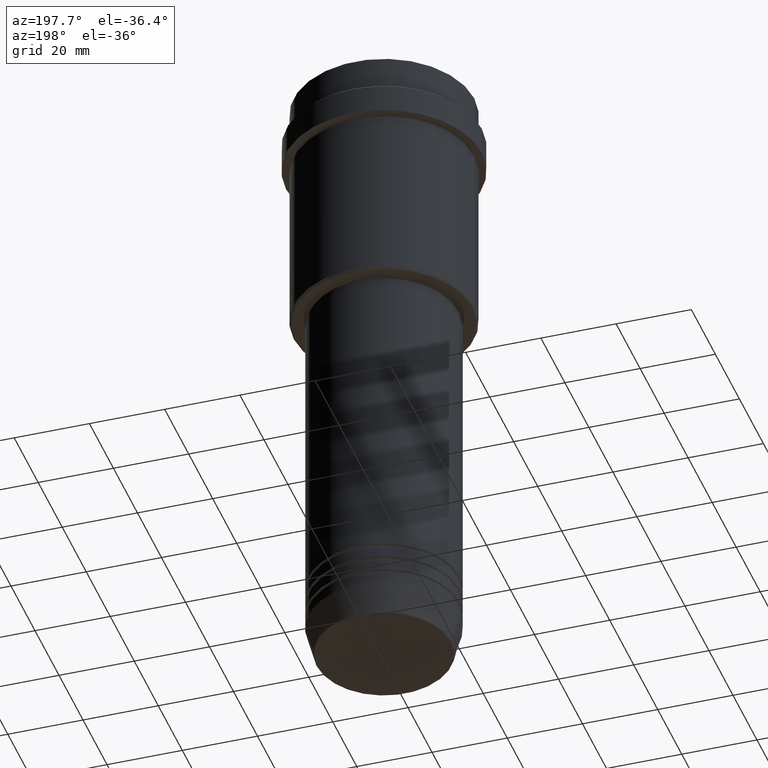
[diagram: clean part render]
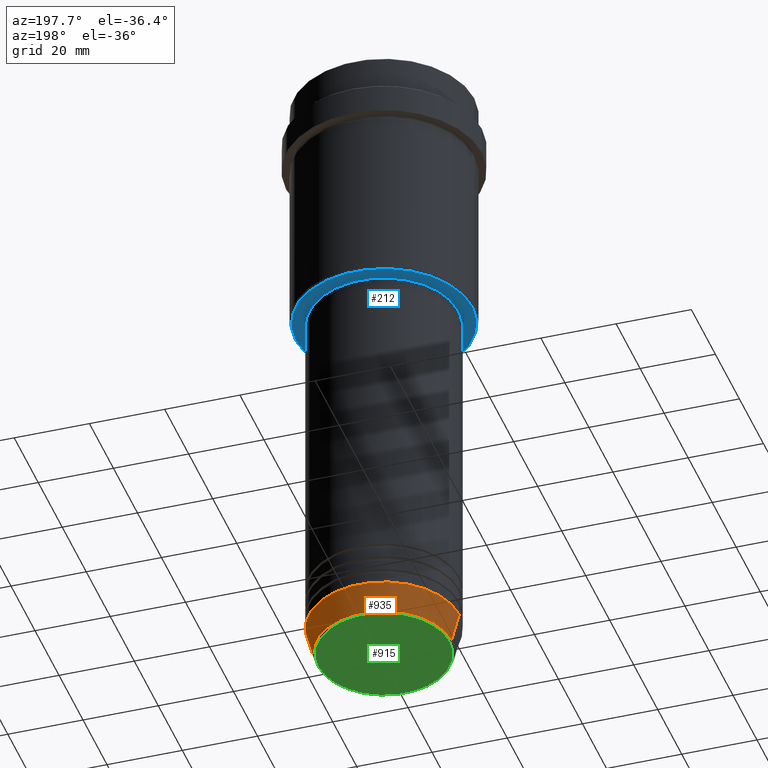
[diagram: same view with three faces highlighted in distinct colors, each labeled with its STEP entity id]
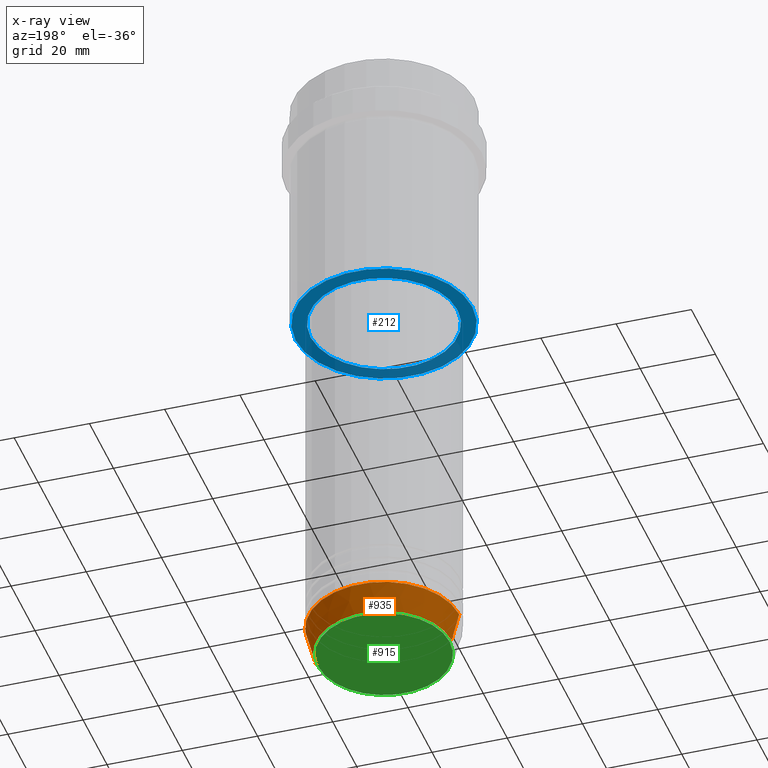
[diagram: x-ray of the same camera — body ghosted, the three highlighted faces saturated]
A machine part, auxiliary view with three faces highlighted in distinct colors.
The next image is the same camera in x-ray (body ghosted, the three faces saturated) — at least one of them is partly hidden behind the body in this view.
Their STEP definitions:

[orange] entity #935 — the highlighted conical surface has half-angle 15 deg.
#3 = CARTESIAN_POINT ( 'NONE',  ( -20.00000000000000000, 2.449293598294706513E-15, -162.0000000000000000 ) ) ;
#8 = DIRECTION ( 'NONE',  ( -0.000000000000000000, -0.000000000000000000, 1.000000000000000000 ) ) ;
#57 = CARTESIAN_POINT ( 'NONE',  ( 20.00000000000000000, 0.000000000000000000, -162.0000000000000000 ) ) ;
#129 = ORIENTED_EDGE ( 'NONE', *, *, #618, .T. ) ;
#141 = DIRECTION ( 'NONE',  ( 1.000000000000000000, 0.000000000000000000, 0.000000000000000000 ) ) ;
#170 = CARTESIAN_POINT ( 'NONE',  ( -17.95570587970605914, 2.324116685748020188E-15, -169.6294095225512990 ) ) ;
#181 = EDGE_CURVE ( 'NONE', #553, #1330, #533, .T. ) ;
#185 = DIRECTION ( 'NONE',  ( 1.000000000000000000, 0.000000000000000000, 0.000000000000000000 ) ) ;
#193 = CARTESIAN_POINT ( 'NONE',  ( -20.00000000000000000, 2.449293598294706513E-15, -162.0000000000000000 ) ) ;
#242 = AXIS2_PLACEMENT_3D ( 'NONE', #1336, #919, #141 ) ;
#275 = EDGE_LOOP ( 'NONE', ( #129, #1270, #380, #580 ) ) ;
#291 = EDGE_CURVE ( 'NONE', #345, #1330, #868, .T. ) ;
#345 = VERTEX_POINT ( 'NONE', #57 ) ;
#351 = CARTESIAN_POINT ( 'NONE',  ( 17.95570587970605914, 0.000000000000000000, -169.6294095225512990 ) ) ;
#380 = ORIENTED_EDGE ( 'NONE', *, *, #291, .F. ) ;
#463 = DIRECTION ( 'NONE',  ( 0.2588190451025215721, 0.000000000000000000, 0.9659258262890679791 ) ) ;
#528 = EDGE_CURVE ( 'NONE', #1179, #345, #676, .T. ) ;
#533 = LINE ( 'NONE', #3, #680 ) ;
#553 = VERTEX_POINT ( 'NONE', #170 ) ;
#580 = ORIENTED_EDGE ( 'NONE', *, *, #528, .F. ) ;
#609 = CIRCLE ( 'NONE', #750, 17.95570587970605914 ) ;
#618 = EDGE_CURVE ( 'NONE', #1179, #553, #609, .T. ) ;
#656 = VECTOR ( 'NONE', #463, 1000.000000000000114 ) ;
#659 = CONICAL_SURFACE ( 'NONE', #848, 20.00000000000000000, 0.2617993877991502960 ) ;
#676 = LINE ( 'NONE', #1020, #656 ) ;
#680 = VECTOR ( 'NONE', #1301, 1000.000000000000114 ) ;
#734 = CARTESIAN_POINT ( 'NONE',  ( 0.000000000000000000, 0.000000000000000000, -162.0000000000000000 ) ) ;
#750 = AXIS2_PLACEMENT_3D ( 'NONE', #1414, #8, #1204 ) ;
#848 = AXIS2_PLACEMENT_3D ( 'NONE', #734, #1176, #185 ) ;
#849 = FACE_OUTER_BOUND ( 'NONE', #275, .T. ) ;
#868 = CIRCLE ( 'NONE', #242, 20.00000000000000000 ) ;
#919 = DIRECTION ( 'NONE',  ( -0.000000000000000000, -0.000000000000000000, 1.000000000000000000 ) ) ;
#935 = ADVANCED_FACE ( 'NONE', ( #849 ), #659, .T. ) ;
#1020 = CARTESIAN_POINT ( 'NONE',  ( 20.00000000000000000, 0.000000000000000000, -162.0000000000000000 ) ) ;
#1176 = DIRECTION ( 'NONE',  ( -0.000000000000000000, -0.000000000000000000, 1.000000000000000000 ) ) ;
#1179 = VERTEX_POINT ( 'NONE', #351 ) ;
#1204 = DIRECTION ( 'NONE',  ( 1.000000000000000000, 0.000000000000000000, 0.000000000000000000 ) ) ;
#1270 = ORIENTED_EDGE ( 'NONE', *, *, #181, .T. ) ;
#1301 = DIRECTION ( 'NONE',  ( -0.2588190451025215721, 3.169619151431775418E-17, 0.9659258262890679791 ) ) ;
#1330 = VERTEX_POINT ( 'NONE', #193 ) ;
#1336 = CARTESIAN_POINT ( 'NONE',  ( 0.000000000000000000, 0.000000000000000000, -162.0000000000000000 ) ) ;
#1414 = CARTESIAN_POINT ( 'NONE',  ( 0.000000000000000000, 0.000000000000000000, -169.6294095225512990 ) ) ;

[blue] entity #212 — the highlighted planar face has unit normal (0, 0, -1).
#48 = DIRECTION ( 'NONE',  ( 0.000000000000000000, 0.000000000000000000, -1.000000000000000000 ) ) ;
#72 = DIRECTION ( 'NONE',  ( -1.000000000000000000, 0.000000000000000000, 0.000000000000000000 ) ) ;
#112 = CIRCLE ( 'NONE', #155, 19.49999999999998934 ) ;
#121 = VERTEX_POINT ( 'NONE', #953 ) ;
#138 = DIRECTION ( 'NONE',  ( 0.000000000000000000, 0.000000000000000000, -1.000000000000000000 ) ) ;
#149 = ORIENTED_EDGE ( 'NONE', *, *, #1113, .T. ) ;
#155 = AXIS2_PLACEMENT_3D ( 'NONE', #235, #781, #443 ) ;
#160 = VERTEX_POINT ( 'NONE', #1393 ) ;
#179 = CIRCLE ( 'NONE', #1106, 23.49999999999998224 ) ;
#208 = EDGE_LOOP ( 'NONE', ( #1341, #1380 ) ) ;
#212 = ADVANCED_FACE ( 'NONE', ( #647, #741 ), #330, .T. ) ;
#216 = EDGE_LOOP ( 'NONE', ( #1366, #149 ) ) ;
#227 = CARTESIAN_POINT ( 'NONE',  ( 0.000000000000000000, 0.000000000000000000, -65.99999999999998579 ) ) ;
#235 = CARTESIAN_POINT ( 'NONE',  ( 0.000000000000000000, 0.000000000000000000, -65.99999999999998579 ) ) ;
#236 = VERTEX_POINT ( 'NONE', #1111 ) ;
#330 = PLANE ( 'NONE',  #1164 ) ;
#407 = DIRECTION ( 'NONE',  ( 1.000000000000000000, 0.000000000000000000, 0.000000000000000000 ) ) ;
#443 = DIRECTION ( 'NONE',  ( 1.000000000000000000, 0.000000000000000000, 0.000000000000000000 ) ) ;
#501 = CIRCLE ( 'NONE', #1386, 19.49999999999998934 ) ;
#522 = EDGE_CURVE ( 'NONE', #160, #236, #112, .T. ) ;
#545 = EDGE_CURVE ( 'NONE', #1152, #121, #1016, .T. ) ;
#587 = AXIS2_PLACEMENT_3D ( 'NONE', #1026, #48, #72 ) ;
#644 = CARTESIAN_POINT ( 'NONE',  ( 0.000000000000000000, 0.000000000000000000, -65.99999999999998579 ) ) ;
#647 = FACE_OUTER_BOUND ( 'NONE', #216, .T. ) ;
#688 = EDGE_CURVE ( 'NONE', #236, #160, #501, .T. ) ;
#741 = FACE_BOUND ( 'NONE', #208, .T. ) ;
#781 = DIRECTION ( 'NONE',  ( -0.000000000000000000, -0.000000000000000000, 1.000000000000000000 ) ) ;
#953 = CARTESIAN_POINT ( 'NONE',  ( -23.49999999999998224, 2.908536147974962135E-15, -65.99999999999998579 ) ) ;
#1016 = CIRCLE ( 'NONE', #587, 23.49999999999998224 ) ;
#1026 = CARTESIAN_POINT ( 'NONE',  ( 0.000000000000000000, 0.000000000000000000, -65.99999999999998579 ) ) ;
#1094 = DIRECTION ( 'NONE',  ( -1.000000000000000000, 0.000000000000000000, -0.000000000000000000 ) ) ;
#1106 = AXIS2_PLACEMENT_3D ( 'NONE', #227, #138, #1116 ) ;
#1111 = CARTESIAN_POINT ( 'NONE',  ( -19.49999999999998934, 2.388061258337337361E-15, -65.99999999999998579 ) ) ;
#1113 = EDGE_CURVE ( 'NONE', #121, #1152, #179, .T. ) ;
#1116 = DIRECTION ( 'NONE',  ( -1.000000000000000000, 0.000000000000000000, 0.000000000000000000 ) ) ;
#1152 = VERTEX_POINT ( 'NONE', #1228 ) ;
#1164 = AXIS2_PLACEMENT_3D ( 'NONE', #1207, #1312, #1094 ) ;
#1197 = DIRECTION ( 'NONE',  ( -0.000000000000000000, -0.000000000000000000, 1.000000000000000000 ) ) ;
#1207 = CARTESIAN_POINT ( 'NONE',  ( 0.000000000000000000, 24.00000000000000000, -65.99999999999998579 ) ) ;
#1228 = CARTESIAN_POINT ( 'NONE',  ( 23.49999999999998224, 0.000000000000000000, -65.99999999999998579 ) ) ;
#1312 = DIRECTION ( 'NONE',  ( 0.000000000000000000, 0.000000000000000000, -1.000000000000000000 ) ) ;
#1341 = ORIENTED_EDGE ( 'NONE', *, *, #522, .T. ) ;
#1366 = ORIENTED_EDGE ( 'NONE', *, *, #545, .T. ) ;
#1380 = ORIENTED_EDGE ( 'NONE', *, *, #688, .T. ) ;
#1386 = AXIS2_PLACEMENT_3D ( 'NONE', #644, #1197, #407 ) ;
#1393 = CARTESIAN_POINT ( 'NONE',  ( 19.49999999999998934, 0.000000000000000000, -65.99999999999998579 ) ) ;

[green] entity #915 — the highlighted planar face has unit normal (0, -0, 1).
#93 = CARTESIAN_POINT ( 'NONE',  ( 0.000000000000000000, 0.000000000000000000, -170.0000000000000000 ) ) ;
#140 = VERTEX_POINT ( 'NONE', #1156 ) ;
#213 = VERTEX_POINT ( 'NONE', #323 ) ;
#286 = CARTESIAN_POINT ( 'NONE',  ( 0.000000000000000000, 0.000000000000000000, -170.0000000000000000 ) ) ;
#323 = CARTESIAN_POINT ( 'NONE',  ( -17.47274296656153325, 2.169366823916867714E-15, -170.0000000000000000 ) ) ;
#392 = DIRECTION ( 'NONE',  ( 0.000000000000000000, 0.000000000000000000, -1.000000000000000000 ) ) ;
#405 = FACE_OUTER_BOUND ( 'NONE', #1395, .T. ) ;
#471 = ORIENTED_EDGE ( 'NONE', *, *, #691, .T. ) ;
#481 = CIRCLE ( 'NONE', #807, 17.47274296656153325 ) ;
#482 = ORIENTED_EDGE ( 'NONE', *, *, #1254, .T. ) ;
#521 = DIRECTION ( 'NONE',  ( 0.000000000000000000, 0.000000000000000000, -1.000000000000000000 ) ) ;
#562 = AXIS2_PLACEMENT_3D ( 'NONE', #93, #521, #745 ) ;
#617 = CARTESIAN_POINT ( 'NONE',  ( 0.000000000000000000, 0.000000000000000000, -170.0000000000000000 ) ) ;
#691 = EDGE_CURVE ( 'NONE', #140, #213, #1189, .T. ) ;
#745 = DIRECTION ( 'NONE',  ( 1.000000000000000000, 0.000000000000000000, 0.000000000000000000 ) ) ;
#807 = AXIS2_PLACEMENT_3D ( 'NONE', #286, #392, #933 ) ;
#915 = ADVANCED_FACE ( 'NONE', ( #405 ), #1279, .F. ) ;
#933 = DIRECTION ( 'NONE',  ( 1.000000000000000000, 0.000000000000000000, 0.000000000000000000 ) ) ;
#961 = DIRECTION ( 'NONE',  ( 0.000000000000000000, -0.000000000000000000, 1.000000000000000000 ) ) ;
#1156 = CARTESIAN_POINT ( 'NONE',  ( 17.47274296656153325, 0.000000000000000000, -170.0000000000000000 ) ) ;
#1168 = AXIS2_PLACEMENT_3D ( 'NONE', #617, #961, #1400 ) ;
#1189 = CIRCLE ( 'NONE', #562, 17.47274296656153325 ) ;
#1254 = EDGE_CURVE ( 'NONE', #213, #140, #481, .T. ) ;
#1279 = PLANE ( 'NONE',  #1168 ) ;
#1395 = EDGE_LOOP ( 'NONE', ( #471, #482 ) ) ;
#1400 = DIRECTION ( 'NONE',  ( 1.000000000000000000, 0.000000000000000000, 0.000000000000000000 ) ) ;